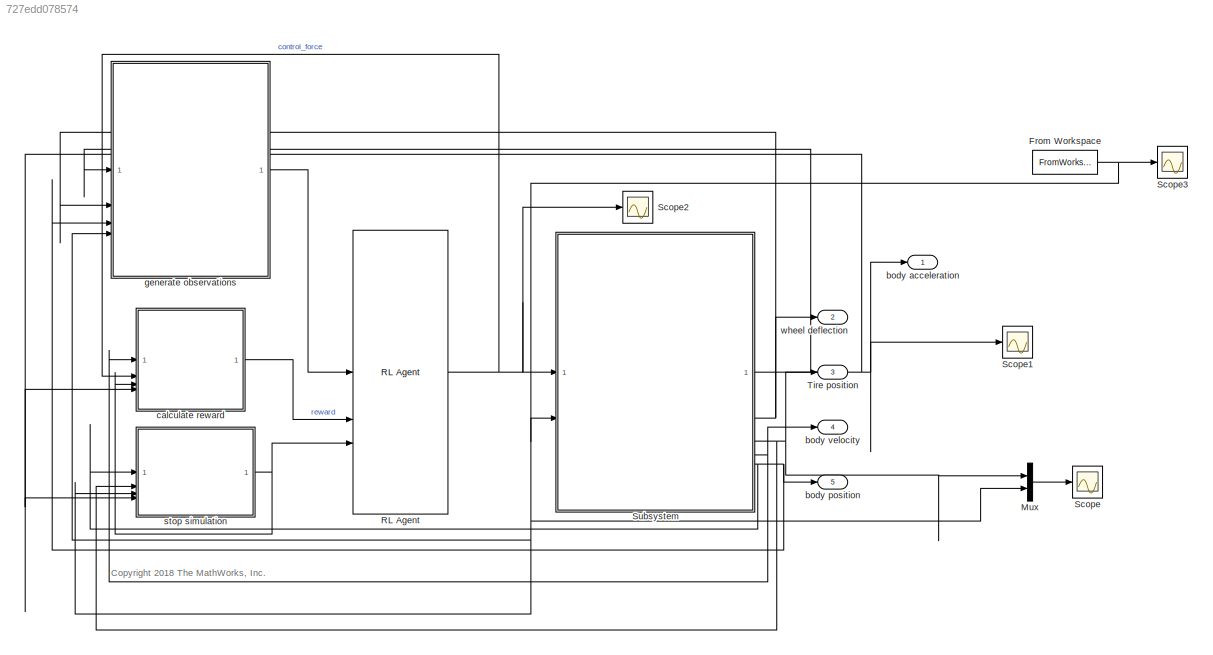
MODEL slx_727edd078574
KIND model
CONFIG AbsTol = auto
CONFIG EnableMultiTasking = off
CONFIG FixedStep = auto
CONFIG MaxStep = auto
CONFIG MinStep = auto
CONFIG RelTol = 1e-3
CONFIG SampleTimeConstraint = Unconstrained
CONFIG SolverName = VariableStepAuto
CONFIG StartTime = 0.0
CONFIG StopTime = 5
BLOCK [FromWorkspace] From Workspace
  SampleTime = 0.01
  VariableName = varsimin
BLOCK [Mux] Mux
  DisplayOption = bar
  Inputs = 2
BLOCK [Reference] RL Agent  REF=rllib/RL Agent
  SourceBlock = rllib/RL Agent
  SourceType = RL Agent
BLOCK [Scope] Scope
  Floating = off
  NumInputPorts = 1
  ScopeSpecificationString = Simulink.scopes.TimeScopeBlockCfg('CurrentConfiguration', extmgr.ConfigurationSet(extmgr.Configuration('Core','General UI',true,'FigureColor',[0.972549019607843 0.972549019607843 0.972549019607843]),extmgr.Configuration('Core','Source UI',true),extmgr.Configuration('Sources','WiredSimulink',true,'DataLoggingVariableName','ScopeData6'),extmgr.Configuration('Visuals','Time Domain',true,'SerializedDi...<+1738ch>
BLOCK [Scope] Scope1
  Floating = off
  NumInputPorts = 1
  ScopeSpecificationString = Simulink.scopes.TimeScopeBlockCfg('CurrentConfiguration', extmgr.ConfigurationSet(extmgr.Configuration('Core','General UI',true),extmgr.Configuration('Core','Source UI',true),extmgr.Configuration('Sources','WiredSimulink',true,'DataLoggingVariableName','ScopeData7'),extmgr.Configuration('Visuals','Time Domain',true,'SerializedDisplays',{struct('MinYLimReal','-13.08663','MaxYLimReal','7.59611','YLa...<+1438ch>
BLOCK [Scope] Scope2
  Floating = off
  NumInputPorts = 1
  ScopeSpecificationString = Simulink.scopes.TimeScopeBlockCfg('CurrentConfiguration', extmgr.ConfigurationSet(extmgr.Configuration('Core','General UI',true),extmgr.Configuration('Core','Source UI',true),extmgr.Configuration('Sources','WiredSimulink',true,'DataLoggingVariableName','ScopeData8'),extmgr.Configuration('Visuals','Time Domain',true,'SerializedDisplays',{struct('MinYLimReal','-0.59054','MaxYLimReal','5.66754','YLab...<+1427ch>
BLOCK [Scope] Scope3
  Floating = off
  NumInputPorts = 1
  ScopeSpecificationString = Simulink.scopes.TimeScopeBlockCfg('CurrentConfiguration', extmgr.ConfigurationSet(extmgr.Configuration('Core','General UI',true),extmgr.Configuration('Core','Source UI',true),extmgr.Configuration('Sources','WiredSimulink',true,'DataLoggingVariableName','ScopeData9'),extmgr.Configuration('Visuals','Time Domain',true,'SerializedDisplays',{struct('MinYLimReal','-0.01656','MaxYLimReal','0.01255','YLab...<+1399ch>
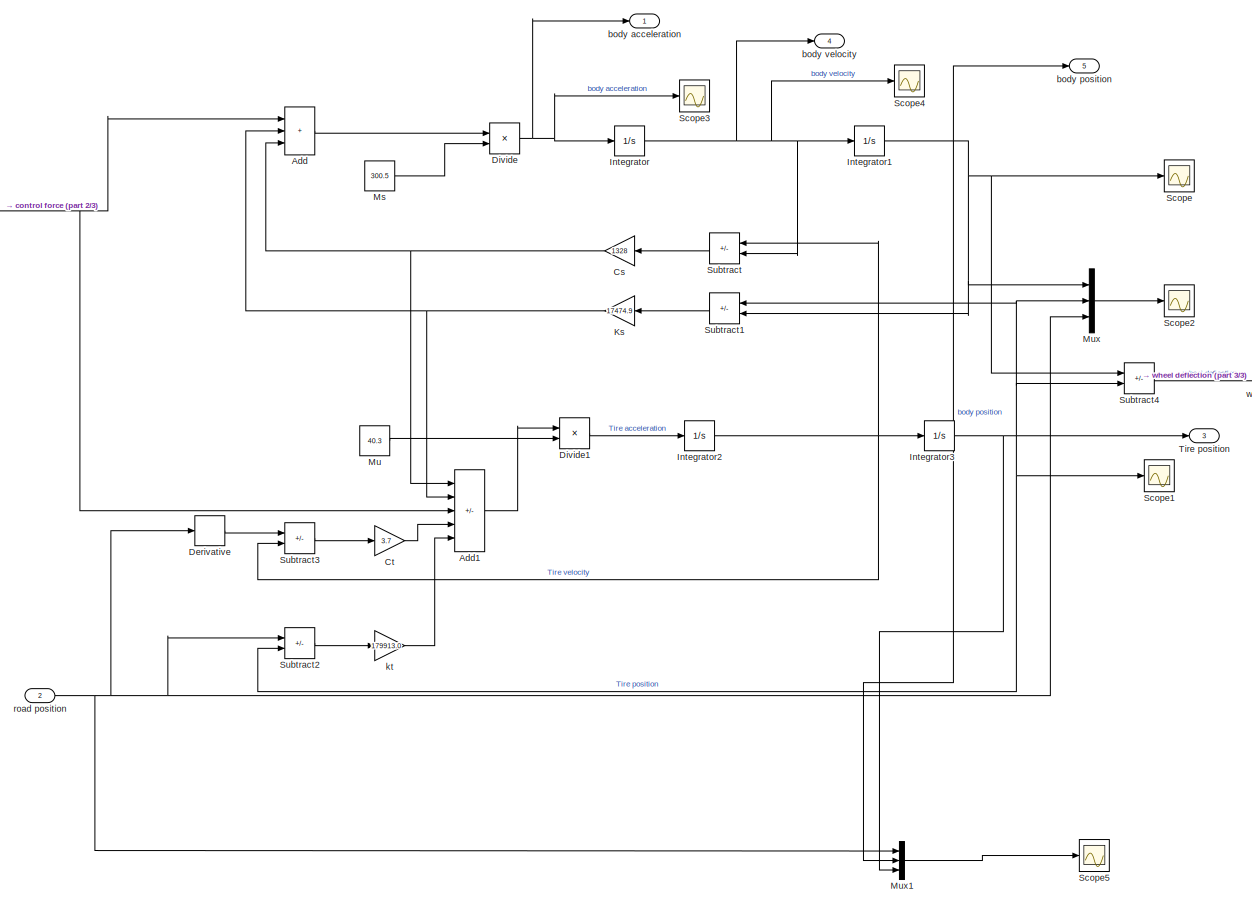
[diagram: Subsystem - part 1/3, most of the canvas]
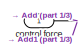
[diagram: Subsystem - part 2/3, top left region]
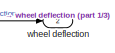
[diagram: Subsystem - part 3/3, middle right region]
BLOCK [SubSystem] Subsystem
BLOCK [Sum] Subsystem/Add
  IconShape = rectangular
  Inputs = +++
BLOCK [Sum] Subsystem/Add1
  IconShape = rectangular
  Inputs = ---++
BLOCK [Gain] Subsystem/Cs
  Gain = 1328
BLOCK [Gain] Subsystem/Ct
  Gain = 3.7
BLOCK [Derivative] Subsystem/Derivative
BLOCK [Product] Subsystem/Divide
  Inputs = */
BLOCK [Product] Subsystem/Divide1
  Inputs = */
BLOCK [Integrator] Subsystem/Integrator
BLOCK [Integrator] Subsystem/Integrator1
BLOCK [Integrator] Subsystem/Integrator2
BLOCK [Integrator] Subsystem/Integrator3
BLOCK [Gain] Subsystem/Ks
  Gain = 17474.9
BLOCK [Constant] Subsystem/Ms
  Value = 300.5
BLOCK [Constant] Subsystem/Mu
  Value = 40.3
BLOCK [Mux] Subsystem/Mux
  DisplayOption = bar
  Inputs = 3
BLOCK [Mux] Subsystem/Mux1
  DisplayOption = bar
  Inputs = 3
BLOCK [Scope] Subsystem/Scope
  Floating = off
  NumInputPorts = 1
  ScopeSpecificationString = Simulink.scopes.TimeScopeBlockCfg('CurrentConfiguration', extmgr.ConfigurationSet(extmgr.Configuration('Core','General UI',true),extmgr.Configuration('Core','Source UI',true),extmgr.Configuration('Sources','WiredSimulink',true,'DataLoggingVariableName','ScopeData1'),extmgr.Configuration('Visuals','Time Domain',true,'SerializedDisplays',{struct('MinYLimReal','-0.38691','MaxYLimReal','0.88758','YLab...<+1400ch>
BLOCK [Scope] Subsystem/Scope1
  Floating = off
  NumInputPorts = 1
  ScopeSpecificationString = Simulink.scopes.TimeScopeBlockCfg('CurrentConfiguration', extmgr.ConfigurationSet(extmgr.Configuration('Core','General UI',true),extmgr.Configuration('Core','Source UI',true),extmgr.Configuration('Sources','WiredSimulink',true,'DataLoggingVariableName','ScopeData3'),extmgr.Configuration('Visuals','Time Domain',true,'SerializedDisplays',{struct('MinYLimReal','-0.30092','MaxYLimReal','0.79947','YLab...<+1403ch>
BLOCK [Scope] Subsystem/Scope2
  Floating = off
  NumInputPorts = 1
  ScopeSpecificationString = Simulink.scopes.TimeScopeBlockCfg('CurrentConfiguration', extmgr.ConfigurationSet(extmgr.Configuration('Core','General UI',true),extmgr.Configuration('Core','Source UI',true),extmgr.Configuration('Sources','WiredSimulink',true,'DataLoggingVariableName','ScopeData4'),extmgr.Configuration('Visuals','Time Domain',true,'SerializedDisplays',{struct('MinYLimReal','-0.38691','MaxYLimReal','0.88758','YLab...<+1431ch>
BLOCK [Scope] Subsystem/Scope3
  Floating = off
  NumInputPorts = 1
  ScopeSpecificationString = Simulink.scopes.TimeScopeBlockCfg('CurrentConfiguration', extmgr.ConfigurationSet(extmgr.Configuration('Core','General UI',true),extmgr.Configuration('Core','Source UI',true),extmgr.Configuration('Sources','WiredSimulink',true,'DataLoggingVariableName','ScopeData5'),extmgr.Configuration('Visuals','Time Domain',true,'SerializedDisplays',{struct('MinYLimReal','-0.46043','MaxYLimReal','0.85505','YLab...<+1404ch>
BLOCK [Scope] Subsystem/Scope4
  Floating = off
  NumInputPorts = 1
  ScopeSpecificationString = Simulink.scopes.TimeScopeBlockCfg('CurrentConfiguration', extmgr.ConfigurationSet(extmgr.Configuration('Core','General UI',true),extmgr.Configuration('Core','Source UI',true),extmgr.Configuration('Sources','WiredSimulink',true),extmgr.Configuration('Visuals','Time Domain',true,'SerializedDisplays',{struct('MinYLimReal','-4.51671','MaxYLimReal','4.49767','YLabelReal','','MinYLimMag','0.00000','MaxY...<+1361ch>
BLOCK [Scope] Subsystem/Scope5
  Floating = off
  NumInputPorts = 1
  ScopeSpecificationString = Simulink.scopes.TimeScopeBlockCfg('CurrentConfiguration', extmgr.ConfigurationSet(extmgr.Configuration('Core','General UI',true,'FigureColor',[0.941176470588235 0.941176470588235 0.941176470588235]),extmgr.Configuration('Core','Source UI',true),extmgr.Configuration('Sources','WiredSimulink',true,'DataLoggingVariableName','ScopeData2'),extmgr.Configuration('Visuals','Time Domain',true,'SerializedDi...<+1904ch>
BLOCK [Sum] Subsystem/Subtract
  IconShape = rectangular
  Inputs = +-
BLOCK [Sum] Subsystem/Subtract1
  IconShape = rectangular
  Inputs = +-
BLOCK [Sum] Subsystem/Subtract2
  IconShape = rectangular
  Inputs = +-
BLOCK [Sum] Subsystem/Subtract3
  IconShape = rectangular
  Inputs = +-
BLOCK [Sum] Subsystem/Subtract4
  IconShape = rectangular
  Inputs = +-
BLOCK [Outport] Subsystem/Tire position
  Port = 3
BLOCK [Outport] Subsystem/body acceleration
BLOCK [Outport] Subsystem/body position
  Port = 5
BLOCK [Outport] Subsystem/body velocity
  Port = 4
BLOCK [Inport] Subsystem/control force
BLOCK [Gain] Subsystem/kt
  Gain = 179913.0
BLOCK [Inport] Subsystem/road position
  Port = 2
BLOCK [Outport] Subsystem/wheel deflection
  Port = 2
BLOCK [Outport] Tire position
  Port = 3
BLOCK [Outport] body acceleration
BLOCK [Outport] body position
  Port = 5
BLOCK [Outport] body velocity
  Port = 4
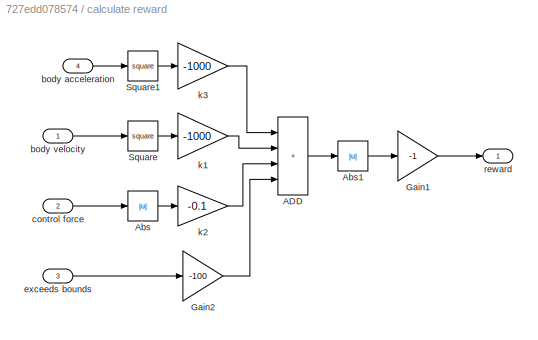
BLOCK [SubSystem] calculate reward
BLOCK [Sum] calculate reward/ADD
  IconShape = rectangular
  Inputs = ++++
BLOCK [Abs] calculate reward/Abs
  SaturateOnIntegerOverflow = off
BLOCK [Abs] calculate reward/Abs1
  SaturateOnIntegerOverflow = off
BLOCK [Gain] calculate reward/Gain1
  Gain = -1
BLOCK [Gain] calculate reward/Gain2
  Gain = -100
BLOCK [Math] calculate reward/Square
  Operator = square
BLOCK [Math] calculate reward/Square1
  Operator = square
BLOCK [Inport] calculate reward/body acceleration
  Port = 4
BLOCK [Inport] calculate reward/body velocity
BLOCK [Inport] calculate reward/control force
  Port = 2
BLOCK [Inport] calculate reward/exceeds bounds
  Port = 3
BLOCK [Gain] calculate reward/k1
  Gain = -1000
BLOCK [Gain] calculate reward/k2
  Gain = -0.1
BLOCK [Gain] calculate reward/k3
  Gain = -1000
BLOCK [Outport] calculate reward/reward
  VectorParamsAs1DForOutWhenUnconnected = off
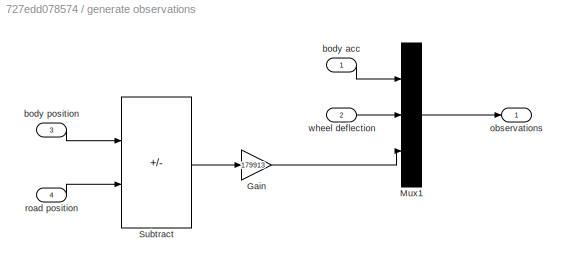
BLOCK [SubSystem] generate observations
BLOCK [Gain] generate observations/Gain
  Gain = 179913
BLOCK [Mux] generate observations/Mux1
  DisplayOption = bar
  Inputs = 3
BLOCK [Sum] generate observations/Subtract
  IconShape = rectangular
  Inputs = +-
BLOCK [Inport] generate observations/body acc
BLOCK [Inport] generate observations/body position
  Port = 3
BLOCK [Outport] generate observations/observations
  VectorParamsAs1DForOutWhenUnconnected = off
BLOCK [Inport] generate observations/road position
  Port = 4
BLOCK [Inport] generate observations/wheel deflection
  Port = 2
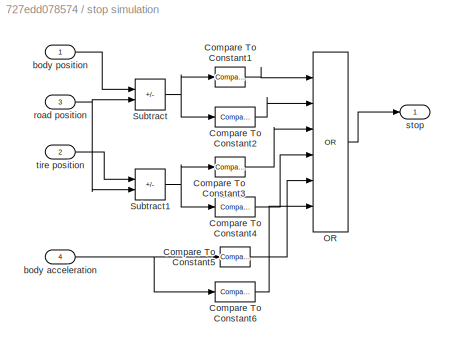
BLOCK [SubSystem] stop simulation
BLOCK [Reference] stop simulation/Compare To Constant1  REF=simulink/Logic and Bit
Operations/Compare
To Constant
  SourceBlock = simulink/Logic and Bit\nOperations/Compare\nTo Constant
  SourceType = Compare To Constant
BLOCK [Reference] stop simulation/Compare To Constant2  REF=simulink/Logic and Bit
Operations/Compare
To Constant
  SourceBlock = simulink/Logic and Bit\nOperations/Compare\nTo Constant
  SourceType = Compare To Constant
BLOCK [Reference] stop simulation/Compare To Constant3  REF=simulink/Logic and Bit
Operations/Compare
To Constant
  SourceBlock = simulink/Logic and Bit\nOperations/Compare\nTo Constant
  SourceType = Compare To Constant
BLOCK [Reference] stop simulation/Compare To Constant4  REF=simulink/Logic and Bit
Operations/Compare
To Constant
  SourceBlock = simulink/Logic and Bit\nOperations/Compare\nTo Constant
  SourceType = Compare To Constant
BLOCK [Reference] stop simulation/Compare To Constant5  REF=simulink/Logic and Bit
Operations/Compare
To Constant
  SourceBlock = simulink/Logic and Bit\nOperations/Compare\nTo Constant
  SourceType = Compare To Constant
BLOCK [Reference] stop simulation/Compare To Constant6  REF=simulink/Logic and Bit
Operations/Compare
To Constant
  SourceBlock = simulink/Logic and Bit\nOperations/Compare\nTo Constant
  SourceType = Compare To Constant
BLOCK [Logic] stop simulation/OR
  AllPortsSameDT = off
  IconShape = distinctive
  Inputs = 6
  Operator = OR
  OutDataTypeStr = boolean
BLOCK [Sum] stop simulation/Subtract
  IconShape = rectangular
  Inputs = +-
BLOCK [Sum] stop simulation/Subtract1
  IconShape = rectangular
  Inputs = +-
BLOCK [Inport] stop simulation/body acceleration
  Port = 4
BLOCK [Inport] stop simulation/body position
BLOCK [Inport] stop simulation/road position
  Port = 3
BLOCK [Outport] stop simulation/stop
  VectorParamsAs1DForOutWhenUnconnected = off
BLOCK [Inport] stop simulation/tire position
  Port = 2
BLOCK [Outport] wheel deflection
  Port = 2
ANNOTATION (root): <copyright redacted>
NET From Workspace:1 -> Mux:2, Scope3:1, Subsystem:2, generate observations:4, stop simulation:3
LINE Mux:1 -> Scope:1
NET RL Agent:1 -> Scope2:1, Subsystem:1, calculate reward:2
LINE Subsystem/Add1:1 -> Subsystem/Divide1:1
LINE Subsystem/Add:1 -> Subsystem/Divide:1
NET Subsystem/Cs:1 -> Subsystem/Add1:1, Subsystem/Add:3
LINE Subsystem/Ct:1 -> Subsystem/Add1:4
LINE Subsystem/Derivative:1 -> Subsystem/Subtract3:1
LINE Subsystem/Divide1:1 -> Subsystem/Integrator2:1
NET Subsystem/Divide:1 -> Subsystem/Integrator:1, Subsystem/Scope3:1, Subsystem/body acceleration:1
NET Subsystem/Integrator1:1 -> Subsystem/Mux1:2, Subsystem/Mux:1, Subsystem/Scope:1, Subsystem/Subtract1:2, Subsystem/Subtract4:1, Subsystem/body position:1
NET Subsystem/Integrator2:1 -> Subsystem/Integrator3:1, Subsystem/Subtract3:2, Subsystem/Subtract:1
NET Subsystem/Integrator3:1 -> Subsystem/Mux1:3, Subsystem/Mux:2, Subsystem/Scope1:1, Subsystem/Subtract1:1, Subsystem/Subtract2:2, Subsystem/Subtract4:2, Subsystem/Tire position:1
NET Subsystem/Integrator:1 -> Subsystem/Integrator1:1, Subsystem/Scope4:1, Subsystem/Subtract:2, Subsystem/body velocity:1
NET Subsystem/Ks:1 -> Subsystem/Add1:2, Subsystem/Add:2
LINE Subsystem/Ms:1 -> Subsystem/Divide:2
LINE Subsystem/Mu:1 -> Subsystem/Divide1:2
LINE Subsystem/Mux1:1 -> Subsystem/Scope5:1
LINE Subsystem/Mux:1 -> Subsystem/Scope2:1
LINE Subsystem/Subtract1:1 -> Subsystem/Ks:1
LINE Subsystem/Subtract2:1 -> Subsystem/kt:1
LINE Subsystem/Subtract3:1 -> Subsystem/Ct:1
LINE Subsystem/Subtract4:1 -> Subsystem/wheel deflection:1
LINE Subsystem/Subtract:1 -> Subsystem/Cs:1
NET Subsystem/control force:1 -> Subsystem/Add1:3, Subsystem/Add:1
LINE Subsystem/kt:1 -> Subsystem/Add1:5
NET Subsystem/road position:1 -> Subsystem/Derivative:1, Subsystem/Mux1:1, Subsystem/Mux:3, Subsystem/Subtract2:1
NET Subsystem:1 -> Scope1:1, body acceleration:1, calculate reward:4, generate observations:1, stop simulation:4
NET Subsystem:2 -> generate observations:2, wheel deflection:1
NET Subsystem:3 -> Mux:1, Tire position:1, stop simulation:2
NET Subsystem:4 -> body velocity:1, calculate reward:1
NET Subsystem:5 -> body position:1, generate observations:3, stop simulation:1
LINE calculate reward/ADD:1 -> calculate reward/Abs1:1
LINE calculate reward/Abs1:1 -> calculate reward/Gain1:1
LINE calculate reward/Abs:1 -> calculate reward/k2:1
LINE calculate reward/Gain1:1 -> calculate reward/reward:1
LINE calculate reward/Gain2:1 -> calculate reward/ADD:4
LINE calculate reward/Square1:1 -> calculate reward/k3:1
LINE calculate reward/Square:1 -> calculate reward/k1:1
LINE calculate reward/body acceleration:1 -> calculate reward/Square1:1
LINE calculate reward/body velocity:1 -> calculate reward/Square:1
LINE calculate reward/control force:1 -> calculate reward/Abs:1
LINE calculate reward/exceeds bounds:1 -> calculate reward/Gain2:1
LINE calculate reward/k1:1 -> calculate reward/ADD:2
LINE calculate reward/k2:1 -> calculate reward/ADD:3
LINE calculate reward/k3:1 -> calculate reward/ADD:1
LINE calculate reward:1 -> RL Agent:2
LINE generate observations/Gain:1 -> generate observations/Mux1:3
LINE generate observations/Mux1:1 -> generate observations/observations:1
LINE generate observations/Subtract:1 -> generate observations/Gain:1
LINE generate observations/body acc:1 -> generate observations/Mux1:1
LINE generate observations/body position:1 -> generate observations/Subtract:1
LINE generate observations/road position:1 -> generate observations/Subtract:2
LINE generate observations/wheel deflection:1 -> generate observations/Mux1:2
LINE generate observations:1 -> RL Agent:1
LINE stop simulation/Compare To Constant1:1 -> stop simulation/OR:1
LINE stop simulation/Compare To Constant2:1 -> stop simulation/OR:2
LINE stop simulation/Compare To Constant3:1 -> stop simulation/OR:3
LINE stop simulation/Compare To Constant4:1 -> stop simulation/OR:4
LINE stop simulation/Compare To Constant5:1 -> stop simulation/OR:5
LINE stop simulation/Compare To Constant6:1 -> stop simulation/OR:6
LINE stop simulation/OR:1 -> stop simulation/stop:1
NET stop simulation/Subtract1:1 -> stop simulation/Compare To Constant3:1, stop simulation/Compare To Constant4:1
NET stop simulation/Subtract:1 -> stop simulation/Compare To Constant1:1, stop simulation/Compare To Constant2:1
NET stop simulation/body acceleration:1 -> stop simulation/Compare To Constant5:1, stop simulation/Compare To Constant6:1
LINE stop simulation/body position:1 -> stop simulation/Subtract:1
NET stop simulation/road position:1 -> stop simulation/Subtract1:2, stop simulation/Subtract:2
LINE stop simulation/tire position:1 -> stop simulation/Subtract1:1
NET stop simulation:1 -> RL Agent:3, calculate reward:3
note: NET lines group one-source signal fan-out (src -> all destinations, sorted); 1:1 wires keep LINE
